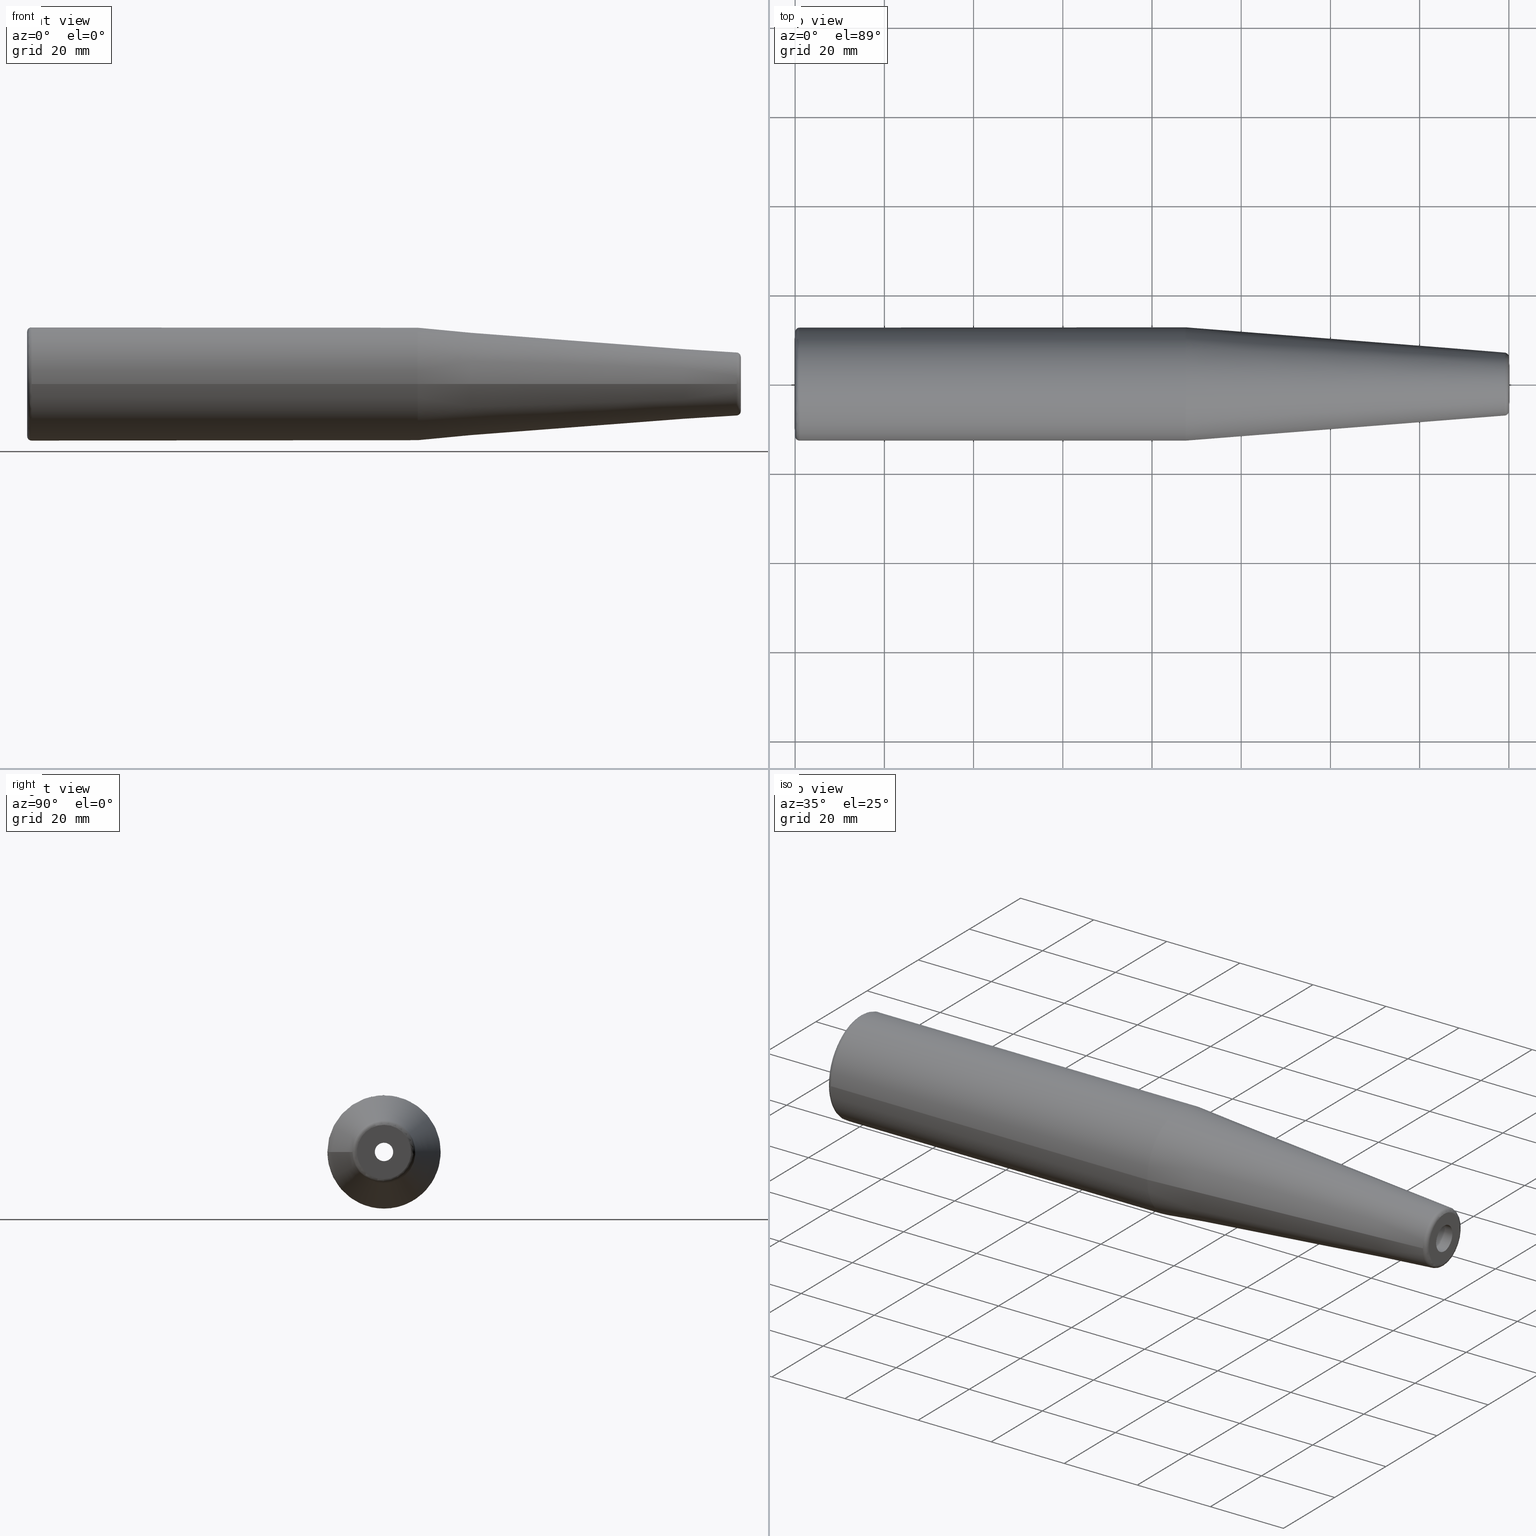
[diagram: canonical four-view strip — front | top / right | iso, engineering-drawing reading convention]
A machine part, canonical four-view strip (front | top / right | iso — engineering-drawing reading convention). The complete STEP part file that produces these views, byte-faithful:
ISO-10303-21;
HEADER;
/* Generated by software containing ST-Developer
 * from STEP Tools, Inc. (www.steptools.com) 
 */

FILE_DESCRIPTION(
/* description */ (''),
/* implementation_level */ '2;1');

FILE_NAME(
/* name */ 'VS042_ST25.4-SFH6.35-160.stp',
/* time_stamp */ '2024-06-26T09:57:36+09:00',
/* author */ ('YSH'),
/* organization */ (''),
/* preprocessor_version */ 'ST-DEVELOPER v20',
/* originating_system */ 'Autodesk Inventor 2024',
/* authorisation */ '');

FILE_SCHEMA (('AUTOMOTIVE_DESIGN { 1 0 10303 214 3 1 1 }'));
ENDSEC;

DATA;
#10=MECHANICAL_DESIGN_GEOMETRIC_PRESENTATION_REPRESENTATION('',(#13),#431);
#11=SHAPE_REPRESENTATION_RELATIONSHIP('SRR','None',#438,#12);
#12=ADVANCED_BREP_SHAPE_REPRESENTATION('',(#14),#430);
#13=STYLED_ITEM('',(#447),#14);
#14=MANIFOLD_SOLID_BREP('\X2\C194B9ACB4DC\X0\1',#226);
#15=FACE_BOUND('',#51,.T.);
#16=FACE_BOUND('',#54,.T.);
#17=FACE_BOUND('',#58,.T.);
#18=FACE_BOUND('',#61,.T.);
#19=PLANE('',#268);
#20=PLANE('',#274);
#21=PLANE('',#279);
#22=PLANE('',#283);
#23=TOROIDAL_SURFACE('',#261,11.7,1.);
#24=TOROIDAL_SURFACE('',#269,6.0756095083418,1.);
#25=CONICAL_SURFACE('',#253,1.75,1.02974425867665);
#26=CONICAL_SURFACE('',#257,2.25,1.02974425867665);
#27=CONICAL_SURFACE('',#276,9.85,0.0785398163397451);
#28=FACE_OUTER_BOUND('',#43,.T.);
#29=FACE_OUTER_BOUND('',#44,.T.);
#30=FACE_OUTER_BOUND('',#45,.T.);
#31=FACE_OUTER_BOUND('',#46,.T.);
#32=FACE_OUTER_BOUND('',#47,.T.);
#33=FACE_OUTER_BOUND('',#48,.T.);
#34=FACE_OUTER_BOUND('',#49,.T.);
#35=FACE_OUTER_BOUND('',#50,.T.);
#36=FACE_OUTER_BOUND('',#52,.T.);
#37=FACE_OUTER_BOUND('',#53,.T.);
#38=FACE_OUTER_BOUND('',#55,.T.);
#39=FACE_OUTER_BOUND('',#56,.T.);
#40=FACE_OUTER_BOUND('',#57,.T.);
#41=FACE_OUTER_BOUND('',#59,.T.);
#42=FACE_OUTER_BOUND('',#60,.T.);
#43=EDGE_LOOP('',(#147,#148,#149,#150,#151));
#44=EDGE_LOOP('',(#152,#153,#154,#155,#156));
#45=EDGE_LOOP('',(#157,#158,#159,#160));
#46=EDGE_LOOP('',(#161,#162,#163,#164));
#47=EDGE_LOOP('',(#165,#166,#167,#168));
#48=EDGE_LOOP('',(#169,#170,#171,#172,#173));
#49=EDGE_LOOP('',(#174,#175,#176,#177,#178));
#50=EDGE_LOOP('',(#179));
#51=EDGE_LOOP('',(#180));
#52=EDGE_LOOP('',(#181,#182,#183,#184,#185));
#53=EDGE_LOOP('',(#186));
#54=EDGE_LOOP('',(#187));
#55=EDGE_LOOP('',(#188,#189,#190,#191,#192));
#56=EDGE_LOOP('',(#193,#194,#195,#196));
#57=EDGE_LOOP('',(#197));
#58=EDGE_LOOP('',(#198));
#59=EDGE_LOOP('',(#199,#200,#201,#202));
#60=EDGE_LOOP('',(#203));
#61=EDGE_LOOP('',(#204));
#62=LINE('',#370,#71);
#63=LINE('',#377,#72);
#64=LINE('',#381,#73);
#65=LINE('',#385,#74);
#66=LINE('',#389,#75);
#67=LINE('',#400,#76);
#68=LINE('',#415,#77);
#69=LINE('',#419,#78);
#70=LINE('',#425,#79);
#71=VECTOR('',#290,2.067);
#72=VECTOR('',#299,1.75);
#73=VECTOR('',#304,3.5);
#74=VECTOR('',#309,2.25);
#75=VECTOR('',#314,4.5);
#76=VECTOR('',#327,12.7);
#77=VECTOR('',#348,9.85);
#78=VECTOR('',#353,3.175);
#79=VECTOR('',#360,3.675);
#80=CIRCLE('',#250,2.067);
#81=CIRCLE('',#251,2.067);
#82=CIRCLE('',#252,2.067);
#83=CIRCLE('',#254,3.5);
#84=CIRCLE('',#256,3.5);
#85=CIRCLE('',#258,4.5);
#86=CIRCLE('',#260,4.5);
#87=CIRCLE('',#262,11.7);
#88=CIRCLE('',#263,1.);
#89=CIRCLE('',#264,12.7);
#90=CIRCLE('',#265,12.7);
#91=CIRCLE('',#267,12.7);
#92=CIRCLE('',#270,7.07252684207492);
#93=CIRCLE('',#271,7.07252684207492);
#94=CIRCLE('',#272,1.);
#95=CIRCLE('',#273,6.0756095083418);
#96=CIRCLE('',#275,3.175);
#97=CIRCLE('',#278,3.175);
#98=CIRCLE('',#280,3.67499999999999);
#99=CIRCLE('',#282,3.675);
#100=VERTEX_POINT('',#367);
#101=VERTEX_POINT('',#369);
#102=VERTEX_POINT('',#371);
#103=VERTEX_POINT('',#375);
#104=VERTEX_POINT('',#379);
#105=VERTEX_POINT('',#383);
#106=VERTEX_POINT('',#387);
#107=VERTEX_POINT('',#391);
#108=VERTEX_POINT('',#393);
#109=VERTEX_POINT('',#395);
#110=VERTEX_POINT('',#399);
#111=VERTEX_POINT('',#404);
#112=VERTEX_POINT('',#405);
#113=VERTEX_POINT('',#408);
#114=VERTEX_POINT('',#412);
#115=VERTEX_POINT('',#417);
#116=VERTEX_POINT('',#421);
#117=VERTEX_POINT('',#424);
#118=EDGE_CURVE('',#100,#100,#80,.T.);
#119=EDGE_CURVE('',#100,#101,#62,.T.);
#120=EDGE_CURVE('',#102,#101,#81,.T.);
#121=EDGE_CURVE('',#101,#102,#82,.T.);
#122=EDGE_CURVE('',#103,#103,#83,.T.);
#123=EDGE_CURVE('',#103,#102,#63,.T.);
#124=EDGE_CURVE('',#104,#104,#84,.T.);
#125=EDGE_CURVE('',#104,#103,#64,.T.);
#126=EDGE_CURVE('',#105,#105,#85,.T.);
#127=EDGE_CURVE('',#105,#104,#65,.T.);
#128=EDGE_CURVE('',#106,#106,#86,.T.);
#129=EDGE_CURVE('',#106,#105,#66,.T.);
#130=EDGE_CURVE('',#107,#107,#87,.T.);
#131=EDGE_CURVE('',#107,#108,#88,.T.);
#132=EDGE_CURVE('',#108,#109,#89,.T.);
#133=EDGE_CURVE('',#109,#108,#90,.T.);
#134=EDGE_CURVE('',#109,#110,#67,.T.);
#135=EDGE_CURVE('',#110,#110,#91,.T.);
#136=EDGE_CURVE('',#111,#112,#92,.T.);
#137=EDGE_CURVE('',#112,#111,#93,.T.);
#138=EDGE_CURVE('',#111,#113,#94,.T.);
#139=EDGE_CURVE('',#113,#113,#95,.T.);
#140=EDGE_CURVE('',#114,#114,#96,.T.);
#141=EDGE_CURVE('',#110,#112,#68,.T.);
#142=EDGE_CURVE('',#115,#115,#97,.T.);
#143=EDGE_CURVE('',#115,#114,#69,.T.);
#144=EDGE_CURVE('',#116,#116,#98,.T.);
#145=EDGE_CURVE('',#116,#117,#70,.T.);
#146=EDGE_CURVE('',#117,#117,#99,.T.);
#147=ORIENTED_EDGE('',*,*,#118,.F.);
#148=ORIENTED_EDGE('',*,*,#119,.T.);
#149=ORIENTED_EDGE('',*,*,#120,.F.);
#150=ORIENTED_EDGE('',*,*,#121,.F.);
#151=ORIENTED_EDGE('',*,*,#119,.F.);
#152=ORIENTED_EDGE('',*,*,#122,.T.);
#153=ORIENTED_EDGE('',*,*,#123,.T.);
#154=ORIENTED_EDGE('',*,*,#120,.T.);
#155=ORIENTED_EDGE('',*,*,#121,.T.);
#156=ORIENTED_EDGE('',*,*,#123,.F.);
#157=ORIENTED_EDGE('',*,*,#124,.F.);
#158=ORIENTED_EDGE('',*,*,#125,.T.);
#159=ORIENTED_EDGE('',*,*,#122,.F.);
#160=ORIENTED_EDGE('',*,*,#125,.F.);
#161=ORIENTED_EDGE('',*,*,#126,.T.);
#162=ORIENTED_EDGE('',*,*,#127,.T.);
#163=ORIENTED_EDGE('',*,*,#124,.T.);
#164=ORIENTED_EDGE('',*,*,#127,.F.);
#165=ORIENTED_EDGE('',*,*,#128,.F.);
#166=ORIENTED_EDGE('',*,*,#129,.T.);
#167=ORIENTED_EDGE('',*,*,#126,.F.);
#168=ORIENTED_EDGE('',*,*,#129,.F.);
#169=ORIENTED_EDGE('',*,*,#130,.T.);
#170=ORIENTED_EDGE('',*,*,#131,.T.);
#171=ORIENTED_EDGE('',*,*,#132,.T.);
#172=ORIENTED_EDGE('',*,*,#133,.T.);
#173=ORIENTED_EDGE('',*,*,#131,.F.);
#174=ORIENTED_EDGE('',*,*,#133,.F.);
#175=ORIENTED_EDGE('',*,*,#134,.T.);
#176=ORIENTED_EDGE('',*,*,#135,.T.);
#177=ORIENTED_EDGE('',*,*,#134,.F.);
#178=ORIENTED_EDGE('',*,*,#132,.F.);
#179=ORIENTED_EDGE('',*,*,#130,.F.);
#180=ORIENTED_EDGE('',*,*,#128,.T.);
#181=ORIENTED_EDGE('',*,*,#136,.T.);
#182=ORIENTED_EDGE('',*,*,#137,.T.);
#183=ORIENTED_EDGE('',*,*,#138,.T.);
#184=ORIENTED_EDGE('',*,*,#139,.T.);
#185=ORIENTED_EDGE('',*,*,#138,.F.);
#186=ORIENTED_EDGE('',*,*,#139,.F.);
#187=ORIENTED_EDGE('',*,*,#140,.T.);
#188=ORIENTED_EDGE('',*,*,#135,.F.);
#189=ORIENTED_EDGE('',*,*,#141,.T.);
#190=ORIENTED_EDGE('',*,*,#136,.F.);
#191=ORIENTED_EDGE('',*,*,#137,.F.);
#192=ORIENTED_EDGE('',*,*,#141,.F.);
#193=ORIENTED_EDGE('',*,*,#142,.T.);
#194=ORIENTED_EDGE('',*,*,#143,.T.);
#195=ORIENTED_EDGE('',*,*,#140,.F.);
#196=ORIENTED_EDGE('',*,*,#143,.F.);
#197=ORIENTED_EDGE('',*,*,#144,.F.);
#198=ORIENTED_EDGE('',*,*,#118,.T.);
#199=ORIENTED_EDGE('',*,*,#144,.T.);
#200=ORIENTED_EDGE('',*,*,#145,.T.);
#201=ORIENTED_EDGE('',*,*,#146,.F.);
#202=ORIENTED_EDGE('',*,*,#145,.F.);
#203=ORIENTED_EDGE('',*,*,#146,.T.);
#204=ORIENTED_EDGE('',*,*,#142,.F.);
#205=CYLINDRICAL_SURFACE('',#249,2.067);
#206=CYLINDRICAL_SURFACE('',#255,3.5);
#207=CYLINDRICAL_SURFACE('',#259,4.5);
#208=CYLINDRICAL_SURFACE('',#266,12.7);
#209=CYLINDRICAL_SURFACE('',#277,3.175);
#210=CYLINDRICAL_SURFACE('',#281,3.675);
#211=ADVANCED_FACE('',(#28),#205,.F.);
#212=ADVANCED_FACE('',(#29),#25,.F.);
#213=ADVANCED_FACE('',(#30),#206,.F.);
#214=ADVANCED_FACE('',(#31),#26,.F.);
#215=ADVANCED_FACE('',(#32),#207,.F.);
#216=ADVANCED_FACE('',(#33),#23,.T.);
#217=ADVANCED_FACE('',(#34),#208,.T.);
#218=ADVANCED_FACE('',(#35,#15),#19,.T.);
#219=ADVANCED_FACE('',(#36),#24,.T.);
#220=ADVANCED_FACE('',(#37,#16),#20,.T.);
#221=ADVANCED_FACE('',(#38),#27,.T.);
#222=ADVANCED_FACE('',(#39),#209,.F.);
#223=ADVANCED_FACE('',(#40,#17),#21,.T.);
#224=ADVANCED_FACE('',(#41),#210,.F.);
#225=ADVANCED_FACE('',(#42,#18),#22,.T.);
#226=CLOSED_SHELL('',(#211,#212,#213,#214,#215,#216,#217,#218,#219,#220,
#221,#222,#223,#224,#225));
#227=DERIVED_UNIT_ELEMENT(#230,1.);
#228=DERIVED_UNIT_ELEMENT(#433,-3.);
#229=DIMENSIONAL_EXPONENTS(0.,1.,0.,0.,0.,0.,0.);
#230=(
CONVERSION_BASED_UNIT('gram',#232)
MASS_UNIT()
NAMED_UNIT(#229)
);
#231=(
MASS_UNIT()
NAMED_UNIT(*)
SI_UNIT(.KILO.,.GRAM.)
);
#232=MASS_MEASURE_WITH_UNIT(MASS_MEASURE(0.001),#231);
#233=DERIVED_UNIT((#227,#228));
#234=MEASURE_REPRESENTATION_ITEM('density measure',
POSITIVE_RATIO_MEASURE(1.),#233);
#235=PROPERTY_DEFINITION_REPRESENTATION(#240,#237);
#236=PROPERTY_DEFINITION_REPRESENTATION(#241,#238);
#237=REPRESENTATION('material name',(#239),#430);
#238=REPRESENTATION('density',(#234),#430);
#239=DESCRIPTIVE_REPRESENTATION_ITEM('\X2\C77CBC18\X0\','\X2\C77CBC18\X0\');
#240=PROPERTY_DEFINITION('material property','material name',#440);
#241=PROPERTY_DEFINITION('material property','density of part',#440);
#242=DATE_TIME_ROLE('creation_date');
#243=APPLIED_DATE_AND_TIME_ASSIGNMENT(#244,#242,(#440));
#244=DATE_AND_TIME(#245,#246);
#245=CALENDAR_DATE(2024,15,1);
#246=LOCAL_TIME(0,0,0.,#247);
#247=COORDINATED_UNIVERSAL_TIME_OFFSET(0,0,.BEHIND.);
#248=AXIS2_PLACEMENT_3D('',#365,#284,#285);
#249=AXIS2_PLACEMENT_3D('',#366,#286,#287);
#250=AXIS2_PLACEMENT_3D('',#368,#288,#289);
#251=AXIS2_PLACEMENT_3D('',#372,#291,#292);
#252=AXIS2_PLACEMENT_3D('',#373,#293,#294);
#253=AXIS2_PLACEMENT_3D('',#374,#295,#296);
#254=AXIS2_PLACEMENT_3D('',#376,#297,#298);
#255=AXIS2_PLACEMENT_3D('',#378,#300,#301);
#256=AXIS2_PLACEMENT_3D('',#380,#302,#303);
#257=AXIS2_PLACEMENT_3D('',#382,#305,#306);
#258=AXIS2_PLACEMENT_3D('',#384,#307,#308);
#259=AXIS2_PLACEMENT_3D('',#386,#310,#311);
#260=AXIS2_PLACEMENT_3D('',#388,#312,#313);
#261=AXIS2_PLACEMENT_3D('',#390,#315,#316);
#262=AXIS2_PLACEMENT_3D('',#392,#317,#318);
#263=AXIS2_PLACEMENT_3D('',#394,#319,#320);
#264=AXIS2_PLACEMENT_3D('',#396,#321,#322);
#265=AXIS2_PLACEMENT_3D('',#397,#323,#324);
#266=AXIS2_PLACEMENT_3D('',#398,#325,#326);
#267=AXIS2_PLACEMENT_3D('',#401,#328,#329);
#268=AXIS2_PLACEMENT_3D('',#402,#330,#331);
#269=AXIS2_PLACEMENT_3D('',#403,#332,#333);
#270=AXIS2_PLACEMENT_3D('',#406,#334,#335);
#271=AXIS2_PLACEMENT_3D('',#407,#336,#337);
#272=AXIS2_PLACEMENT_3D('',#409,#338,#339);
#273=AXIS2_PLACEMENT_3D('',#410,#340,#341);
#274=AXIS2_PLACEMENT_3D('',#411,#342,#343);
#275=AXIS2_PLACEMENT_3D('',#413,#344,#345);
#276=AXIS2_PLACEMENT_3D('',#414,#346,#347);
#277=AXIS2_PLACEMENT_3D('',#416,#349,#350);
#278=AXIS2_PLACEMENT_3D('',#418,#351,#352);
#279=AXIS2_PLACEMENT_3D('',#420,#354,#355);
#280=AXIS2_PLACEMENT_3D('',#422,#356,#357);
#281=AXIS2_PLACEMENT_3D('',#423,#358,#359);
#282=AXIS2_PLACEMENT_3D('',#426,#361,#362);
#283=AXIS2_PLACEMENT_3D('',#427,#363,#364);
#284=DIRECTION('axis',(0.,0.,1.));
#285=DIRECTION('refdir',(1.,0.,0.));
#286=DIRECTION('center_axis',(1.,0.,0.));
#287=DIRECTION('ref_axis',(0.,0.,-1.));
#288=DIRECTION('center_axis',(-1.,0.,0.));
#289=DIRECTION('ref_axis',(0.,0.,-1.));
#290=DIRECTION('',(-1.,0.,0.));
#291=DIRECTION('center_axis',(1.,0.,0.));
#292=DIRECTION('ref_axis',(0.,0.,-1.));
#293=DIRECTION('center_axis',(1.,0.,0.));
#294=DIRECTION('ref_axis',(0.,0.,-1.));
#295=DIRECTION('center_axis',(-1.,0.,0.));
#296=DIRECTION('ref_axis',(0.,0.,1.));
#297=DIRECTION('center_axis',(-1.,0.,0.));
#298=DIRECTION('ref_axis',(0.,0.,1.));
#299=DIRECTION('',(0.515038074910054,1.04972719113862E-16,0.857167300702112));
#300=DIRECTION('center_axis',(-1.,0.,0.));
#301=DIRECTION('ref_axis',(0.,0.,1.));
#302=DIRECTION('center_axis',(1.,0.,0.));
#303=DIRECTION('ref_axis',(0.,0.,1.));
#304=DIRECTION('',(1.,0.,0.));
#305=DIRECTION('center_axis',(-1.,0.,0.));
#306=DIRECTION('ref_axis',(0.,0.,1.));
#307=DIRECTION('center_axis',(-1.,0.,0.));
#308=DIRECTION('ref_axis',(0.,0.,1.));
#309=DIRECTION('',(0.515038074910054,1.04972719113862E-16,0.857167300702112));
#310=DIRECTION('center_axis',(-1.,0.,0.));
#311=DIRECTION('ref_axis',(0.,0.,1.));
#312=DIRECTION('center_axis',(1.,0.,0.));
#313=DIRECTION('ref_axis',(0.,0.,1.));
#314=DIRECTION('',(1.,0.,0.));
#315=DIRECTION('center_axis',(-1.,0.,0.));
#316=DIRECTION('ref_axis',(0.,0.,1.));
#317=DIRECTION('center_axis',(1.,0.,0.));
#318=DIRECTION('ref_axis',(0.,-1.,-1.83697019872103E-16));
#319=DIRECTION('center_axis',(0.,-1.,1.22464679914735E-16));
#320=DIRECTION('ref_axis',(0.,-1.22464679914735E-16,-1.));
#321=DIRECTION('center_axis',(-1.,0.,0.));
#322=DIRECTION('ref_axis',(0.,-1.,-1.83697019872103E-16));
#323=DIRECTION('center_axis',(-1.,0.,0.));
#324=DIRECTION('ref_axis',(0.,-1.,-1.83697019872103E-16));
#325=DIRECTION('center_axis',(-1.,0.,0.));
#326=DIRECTION('ref_axis',(0.,1.,0.));
#327=DIRECTION('',(1.,0.,0.));
#328=DIRECTION('center_axis',(-1.,0.,0.));
#329=DIRECTION('ref_axis',(0.,0.,1.));
#330=DIRECTION('center_axis',(-1.,0.,0.));
#331=DIRECTION('ref_axis',(0.,0.,1.));
#332=DIRECTION('center_axis',(-1.,0.,0.));
#333=DIRECTION('ref_axis',(0.,0.,1.));
#334=DIRECTION('center_axis',(1.,0.,0.));
#335=DIRECTION('ref_axis',(0.,-1.,-3.06161699786838E-17));
#336=DIRECTION('center_axis',(1.,0.,0.));
#337=DIRECTION('ref_axis',(0.,-1.,-3.06161699786838E-17));
#338=DIRECTION('center_axis',(0.,-1.,1.22464679914735E-16));
#339=DIRECTION('ref_axis',(0.,-1.22464679914735E-16,-1.));
#340=DIRECTION('center_axis',(-1.,0.,0.));
#341=DIRECTION('ref_axis',(0.,-1.,-1.83697019872103E-16));
#342=DIRECTION('center_axis',(1.,0.,0.));
#343=DIRECTION('ref_axis',(0.,0.,-1.));
#344=DIRECTION('center_axis',(-1.,0.,0.));
#345=DIRECTION('ref_axis',(0.,0.,1.));
#346=DIRECTION('center_axis',(-1.,0.,0.));
#347=DIRECTION('ref_axis',(0.,1.,0.));
#348=DIRECTION('',(0.996917333733128,0.0784590957278453,-9.60846804471015E-18));
#349=DIRECTION('center_axis',(-1.,0.,0.));
#350=DIRECTION('ref_axis',(0.,1.,0.));
#351=DIRECTION('center_axis',(-1.,0.,0.));
#352=DIRECTION('ref_axis',(0.,0.,1.));
#353=DIRECTION('',(1.,0.,0.));
#354=DIRECTION('center_axis',(1.,0.,0.));
#355=DIRECTION('ref_axis',(0.,0.,-1.));
#356=DIRECTION('center_axis',(-1.,0.,0.));
#357=DIRECTION('ref_axis',(0.,0.,1.));
#358=DIRECTION('center_axis',(-1.,0.,0.));
#359=DIRECTION('ref_axis',(0.,1.,0.));
#360=DIRECTION('',(1.,0.,0.));
#361=DIRECTION('center_axis',(-1.,0.,0.));
#362=DIRECTION('ref_axis',(0.,0.,1.));
#363=DIRECTION('center_axis',(-1.,0.,0.));
#364=DIRECTION('ref_axis',(0.,0.,1.));
#365=CARTESIAN_POINT('',(0.,0.,0.));
#366=CARTESIAN_POINT('Origin',(-163.982682012461,0.,0.));
#367=CARTESIAN_POINT('',(-36.,2.53134493383758E-16,2.067));
#368=CARTESIAN_POINT('Origin',(-36.,0.,0.));
#369=CARTESIAN_POINT('',(-51.1389667329335,-2.53134493383758E-16,2.067));
#370=CARTESIAN_POINT('',(-163.982682012461,-2.53134493383758E-16,2.067));
#371=CARTESIAN_POINT('',(-51.1389667329335,-2.53134493383758E-16,-2.067));
#372=CARTESIAN_POINT('Origin',(-51.1389667329335,0.,0.));
#373=CARTESIAN_POINT('Origin',(-51.1389667329335,0.,0.));
#374=CARTESIAN_POINT('Origin',(-50.9484939167018,0.,0.));
#375=CARTESIAN_POINT('',(-52.,-4.28626379701574E-16,-3.5));
#376=CARTESIAN_POINT('Origin',(-52.,0.,0.));
#377=CARTESIAN_POINT('',(-50.9484939167018,-2.14313189850787E-16,-1.75));
#378=CARTESIAN_POINT('Origin',(-106.,0.,0.));
#379=CARTESIAN_POINT('',(-89.3991393809724,4.28626379701574E-16,-3.5));
#380=CARTESIAN_POINT('Origin',(-89.3991393809724,0.,0.));
#381=CARTESIAN_POINT('',(-106.,-4.28626379701574E-16,-3.5));
#382=CARTESIAN_POINT('Origin',(-88.648063607188,0.,0.));
#383=CARTESIAN_POINT('',(-90.,-5.51091059616309E-16,-4.5));
#384=CARTESIAN_POINT('Origin',(-90.,0.,0.));
#385=CARTESIAN_POINT('',(-88.648063607188,-2.75545529808154E-16,-2.25));
#386=CARTESIAN_POINT('Origin',(-125.,0.,0.));
#387=CARTESIAN_POINT('',(-160.,-5.51091059616309E-16,-4.5));
#388=CARTESIAN_POINT('Origin',(-160.,0.,0.));
#389=CARTESIAN_POINT('',(-125.,-5.51091059616309E-16,-4.5));
#390=CARTESIAN_POINT('Origin',(-159.,0.,0.));
#391=CARTESIAN_POINT('',(-160.,-1.4328367550024E-15,-11.7));
#392=CARTESIAN_POINT('Origin',(-160.,0.,0.));
#393=CARTESIAN_POINT('',(-159.,-1.55530143491714E-15,-12.7));
#394=CARTESIAN_POINT('Origin',(-159.,-1.4328367550024E-15,-11.7));
#395=CARTESIAN_POINT('',(-159.,-12.7,1.55530143491714E-15));
#396=CARTESIAN_POINT('Origin',(-159.,0.,0.));
#397=CARTESIAN_POINT('Origin',(-159.,0.,0.));
#398=CARTESIAN_POINT('Origin',(-116.212683498098,0.,0.));
#399=CARTESIAN_POINT('',(-72.4253669961954,-12.7,1.55530143491714E-15));
#400=CARTESIAN_POINT('',(-116.212683498098,-12.7,1.55530143491714E-15));
#401=CARTESIAN_POINT('Origin',(-72.4253669961954,0.,0.));
#402=CARTESIAN_POINT('Origin',(-160.,0.,0.));
#403=CARTESIAN_POINT('Origin',(-0.999999999999996,0.,0.));
#404=CARTESIAN_POINT('',(-0.921540904272149,-8.66134735903079E-16,-7.07252684207492));
#405=CARTESIAN_POINT('',(-0.921540904272149,-7.07252684207492,8.66134735903079E-16));
#406=CARTESIAN_POINT('Origin',(-0.921540904272149,0.,1.08266841987885E-15));
#407=CARTESIAN_POINT('Origin',(-0.921540904272149,0.,1.08266841987885E-15));
#408=CARTESIAN_POINT('',(0.,-7.44047573726E-16,-6.0756095083418));
#409=CARTESIAN_POINT('Origin',(-0.999999999999996,-7.44047573726E-16,-6.0756095083418));
#410=CARTESIAN_POINT('Origin',(0.,0.,0.));
#411=CARTESIAN_POINT('Origin',(0.,7.,0.));
#412=CARTESIAN_POINT('',(-1.77635683940025E-14,-3.175,3.88825358729285E-16));
#413=CARTESIAN_POINT('Origin',(-1.77635683940025E-14,0.,0.));
#414=CARTESIAN_POINT('Origin',(-36.2126834980977,0.,0.));
#415=CARTESIAN_POINT('',(-36.2126834980977,-9.85,1.20627709716014E-15));
#416=CARTESIAN_POINT('Origin',(-13.,0.,0.));
#417=CARTESIAN_POINT('',(-26.,-3.175,3.88825358729285E-16));
#418=CARTESIAN_POINT('Origin',(-26.,0.,0.));
#419=CARTESIAN_POINT('',(-13.,-3.175,3.88825358729285E-16));
#420=CARTESIAN_POINT('Origin',(-36.,3.67499999999999,0.));
#421=CARTESIAN_POINT('',(-36.,-3.675,4.50057698686652E-16));
#422=CARTESIAN_POINT('Origin',(-36.,0.,0.));
#423=CARTESIAN_POINT('Origin',(-31.,0.,0.));
#424=CARTESIAN_POINT('',(-26.,-3.675,4.50057698686652E-16));
#425=CARTESIAN_POINT('',(-31.,-3.675,4.50057698686652E-16));
#426=CARTESIAN_POINT('Origin',(-26.,0.,0.));
#427=CARTESIAN_POINT('Origin',(-26.,3.175,0.));
#428=UNCERTAINTY_MEASURE_WITH_UNIT(LENGTH_MEASURE(0.01),#432,
'DISTANCE_ACCURACY_VALUE',
'Maximum model space distance between geometric entities at asserted c
onnectivities');
#429=UNCERTAINTY_MEASURE_WITH_UNIT(LENGTH_MEASURE(0.01),#432,
'DISTANCE_ACCURACY_VALUE',
'Maximum model space distance between geometric entities at asserted c
onnectivities');
#430=(
GEOMETRIC_REPRESENTATION_CONTEXT(3)
GLOBAL_UNCERTAINTY_ASSIGNED_CONTEXT((#428))
GLOBAL_UNIT_ASSIGNED_CONTEXT((#432,#434,#435))
REPRESENTATION_CONTEXT('','3D')
);
#431=(
GEOMETRIC_REPRESENTATION_CONTEXT(3)
GLOBAL_UNCERTAINTY_ASSIGNED_CONTEXT((#429))
GLOBAL_UNIT_ASSIGNED_CONTEXT((#432,#434,#435))
REPRESENTATION_CONTEXT('','3D')
);
#432=(
LENGTH_UNIT()
NAMED_UNIT(*)
SI_UNIT(.MILLI.,.METRE.)
);
#433=(
LENGTH_UNIT()
NAMED_UNIT(*)
SI_UNIT(.CENTI.,.METRE.)
);
#434=(
NAMED_UNIT(*)
PLANE_ANGLE_UNIT()
SI_UNIT($,.RADIAN.)
);
#435=(
NAMED_UNIT(*)
SI_UNIT($,.STERADIAN.)
SOLID_ANGLE_UNIT()
);
#436=SHAPE_DEFINITION_REPRESENTATION(#437,#438);
#437=PRODUCT_DEFINITION_SHAPE('',$,#440);
#438=SHAPE_REPRESENTATION('',(#248),#430);
#439=PRODUCT_DEFINITION_CONTEXT('part definition',#444,'design');
#440=PRODUCT_DEFINITION('LO-ST25.4-SFH6.35-160','LO-ST25.4-SFH6.35-160',
#441,#439);
#441=PRODUCT_DEFINITION_FORMATION('',$,#446);
#442=PRODUCT_RELATED_PRODUCT_CATEGORY('LO-ST25.4-SFH6.35-160',
'LO-ST25.4-SFH6.35-160',(#446));
#443=APPLICATION_PROTOCOL_DEFINITION('international standard',
'automotive_design',2009,#444);
#444=APPLICATION_CONTEXT(
'Core Data for Automotive Mechanical Design Process');
#445=PRODUCT_CONTEXT('part definition',#444,'mechanical');
#446=PRODUCT('LO-ST25.4-SFH6.35-160','LO-ST25.4-SFH6.35-160',$,(#445));
#447=PRESENTATION_STYLE_ASSIGNMENT((#448));
#448=SURFACE_STYLE_USAGE(.BOTH.,#451);
#449=SURFACE_STYLE_RENDERING_WITH_PROPERTIES($,#455,(#450));
#450=SURFACE_STYLE_TRANSPARENT(0.339999973773956);
#451=SURFACE_SIDE_STYLE('',(#452,#449));
#452=SURFACE_STYLE_FILL_AREA(#453);
#453=FILL_AREA_STYLE('',(#454));
#454=FILL_AREA_STYLE_COLOUR('',#455);
#455=COLOUR_RGB('',0.925490196078431,0.945098039215686,0.937254901960784);
ENDSEC;
END-ISO-10303-21;
